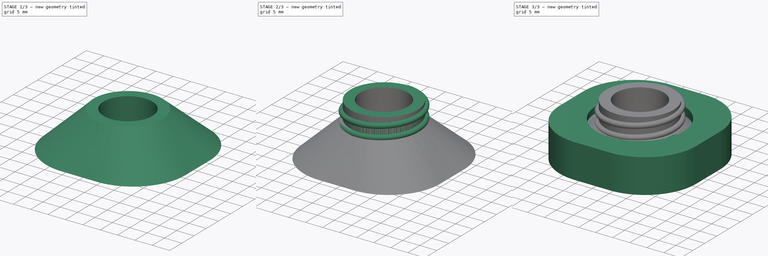
[diagram: build sequence overview — one tinted view per stage of 3, left to right]
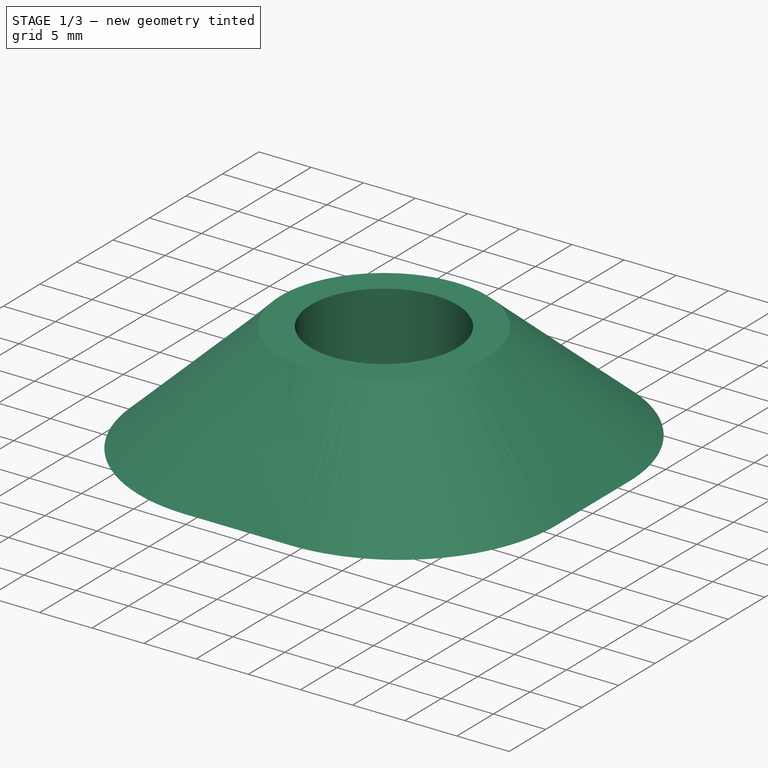
[diagram: stage 1 of 3 — iso view after this stage's code; geometry added in this stage tinted green]
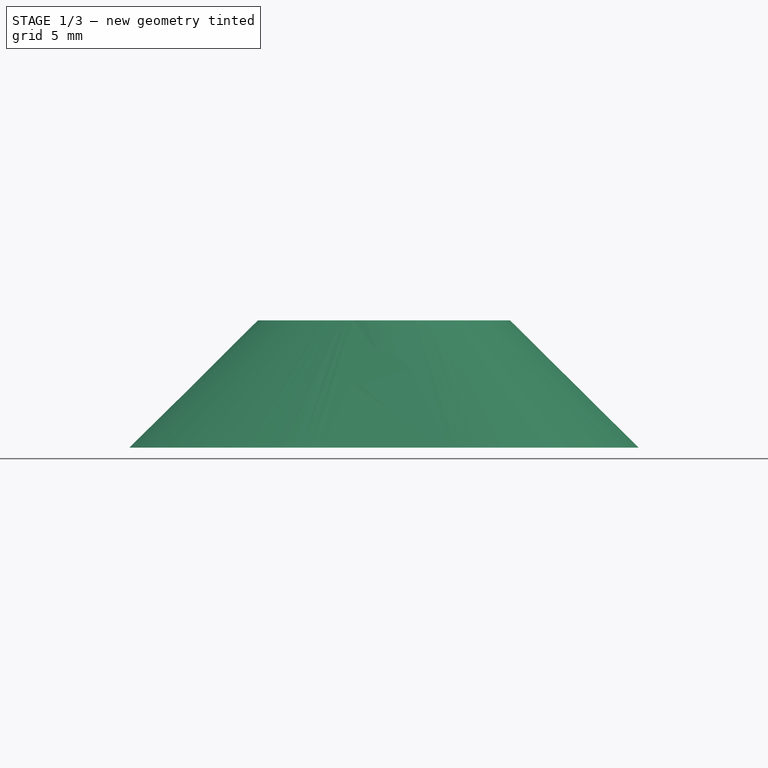
[diagram: stage 1 of 3 — front view after this stage's code; geometry added in this stage tinted green]
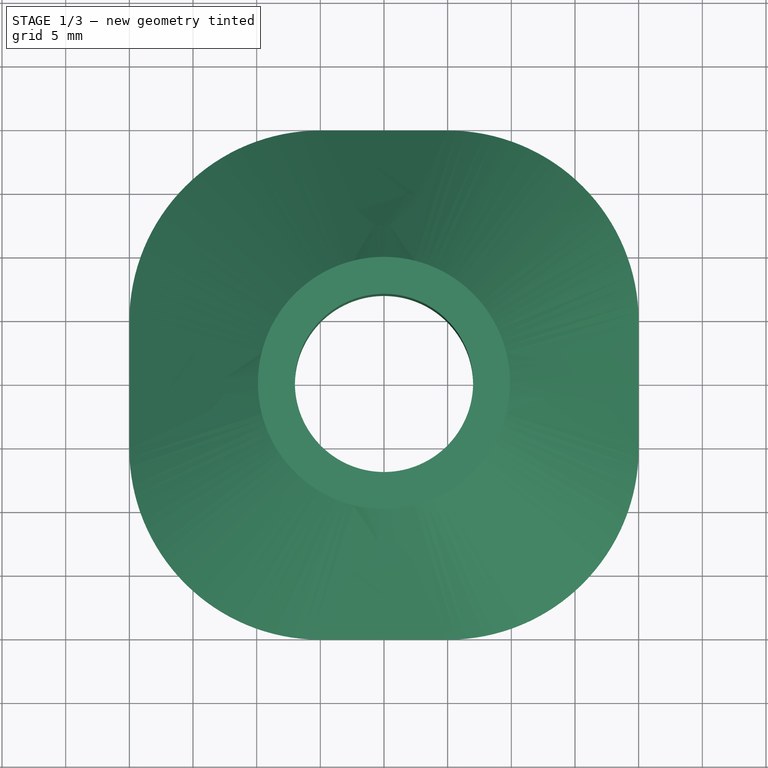
[diagram: stage 1 of 3 — top view after this stage's code; geometry added in this stage tinted green]
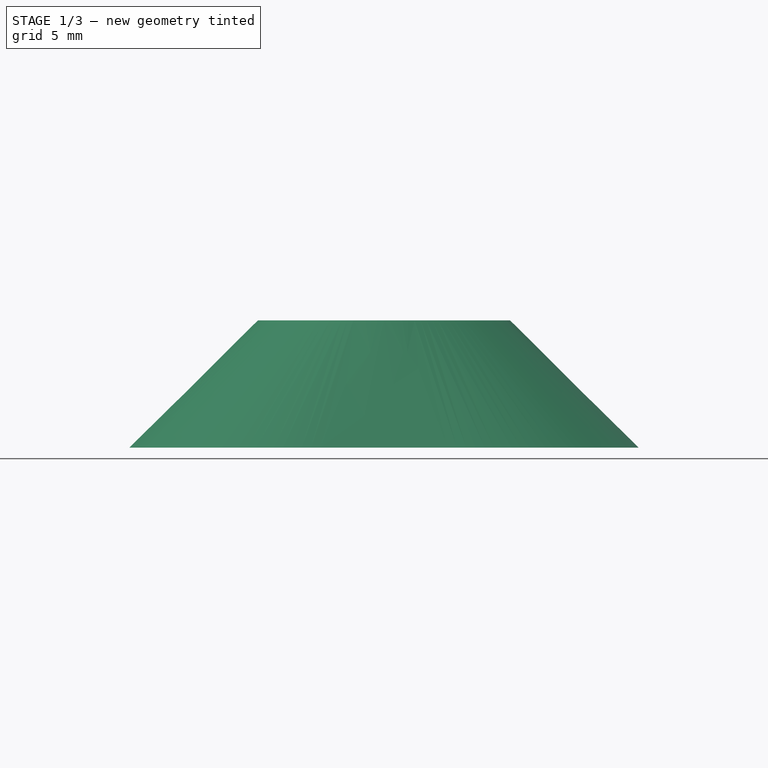
[diagram: stage 1 of 3 — right view after this stage's code; geometry added in this stage tinted green]
FCSTD DOCUMENT  (FreeCAD 0.20R29177 (Git))
Label: dispenser-bottle-adapter
License: All rights reserved
LicenseURL: http://en.wikipedia.org/wiki/All_rights_reserved
objects: Sketcher::SketchObject×7, PartDesign::Body×5, Spreadsheet::Sheet×3, PartDesign::AdditiveHelix×2, PartDesign::Pad×2, PartDesign::AdditiveLoft×1, PartDesign::Plane×1, PartDesign::Pocket×1, App::Part×1
note: 25 computed .brp shape members not serialized (recipe doc carries the construction recipe); baked Part::Feature solids carry a one-line shape summary decoded from their .brp

FEATURE [PartDesign::Body] Body002  label="dispenser-thread"
  Group = -> [Sketch002,AdditiveHelix001]
  Origin = -> Origin005
  Placement = pos=(0,0,20) rot=(0,0,1;0rad)
  Tip = -> AdditiveHelix001
  expr: .Placement.Base.z = <<dispenser-thread-wall>>.Placement.Base.z
FEATURE [Sketcher::SketchObject] Sketch004
  FullyConstrained = true
  MapMode = 5
  Support = -> [XY_Plane007]
  expr: Constraints[16] = <<bottle-cap-dims>>.cap_side_wall_len / 4
  expr: Constraints[17] = <<bottle-cap-dims>>.cap_side_wall_len / 2
  sketch-geometry (8):
    g0: LineSegment StartX=20 StartY=-5 StartZ=0 EndX=20 EndY=5 EndZ=0
    g1: LineSegment StartX=5 StartY=20 StartZ=0 EndX=-5 EndY=20 EndZ=0
    g2: LineSegment StartX=-20 StartY=5 StartZ=0 EndX=-20 EndY=-5 EndZ=0
    g3: LineSegment StartX=-5 StartY=-20 StartZ=0 EndX=5 EndY=-20 EndZ=0
    g4: ArcOfCircle CenterX=5 CenterY=5 CenterZ=0 NormalX=0 NormalY=0 NormalZ=1 AngleXU=0 Radius=15 StartAngle=0 EndAngle=1.5708
    g5: ArcOfCircle CenterX=-5 CenterY=-5 CenterZ=0 NormalX=0 NormalY=0 NormalZ=1 AngleXU=0 Radius=15 StartAngle=3.14159 EndAngle=4.71239
    g6: ArcOfCircle CenterX=5 CenterY=-5 CenterZ=0 NormalX=0 NormalY=0 NormalZ=1 AngleXU=0 Radius=15 StartAngle=4.71239 EndAngle=6.28319
    g7: ArcOfCircle CenterX=-5 CenterY=5 CenterZ=0 NormalX=0 NormalY=0 NormalZ=1 AngleXU=0 Radius=15 StartAngle=1.5708 EndAngle=3.14159
  constraints (18):
    c: Equal(g0,g1)
    c: Equal(g0,g2)
    c: Equal(g0,g3)
    c: Parallel(g2,g-2)
    c: Tangent(g1,g4) = -1.5708
    c: Tangent(g0,g4) = -1.5708
    c: Tangent(g3,g5) = -1.5708
    c: Tangent(g2,g5) = -1.5708
    c: Tangent(g3,g6) = -1.5708
    c: Tangent(g0,g6) = -1.5708
    c: Tangent(g1,g7) = -1.5708
    c: Tangent(g2,g7) = -1.5708
    c: Parallel(g1,g-1)
    c: Parallel(g3,g1)
    c: Symmetric(g7,g4,g-2)
    c: Symmetric(g5,g7,g-1)
    c: DistanceX(g1,g1) = 10
    c: DistanceY(g-1,g1) = 20
FEATURE [Sketcher::SketchObject] Sketch005
  AttachmentOffset = pos=(0,0,10) rot=(0,0,1;0rad)
  FullyConstrained = true
  MapMode = 5
  Placement = pos=(0,0,10) rot=(0,0,1;0rad)
  Support = -> [XY_Plane007]
  expr: .AttachmentOffset.Base.z = <<bridge-dims>>.height
  expr: Constraints[0] = <<dispenser-dims>>.neck_outer
  sketch-geometry (1):
    g0: Circle CenterX=0 CenterY=0 CenterZ=0 NormalX=0 NormalY=0 NormalZ=1 AngleXU=0 Radius=9.9
  constraints (2):
    c: Radius(g0) = 9.9
    c: Coincident(g0,g-1)
FEATURE [PartDesign::AdditiveLoft] AdditiveLoft
  Closed = false
  Profile = -> Sketch005
  Ruled = false
  Sections = -> [Sketch004]
FEATURE [PartDesign::Body] Body003  label="dispenser-thread-wall"
  Group = -> [Sketch003,Pad001]
  Origin = -> Origin
  Placement = pos=(0,0,20) rot=(0,0,1;0rad)
  Tip = -> Pad001
  expr: .Placement.Base.z = <<bottle-cap-dims>>.cap_height + <<bridge-dims>>.height
FEATURE [PartDesign::Pocket] Pocket001
  BaseFeature = -> AdditiveLoft
  Direction = (1,1,1)
  Length = 5
  Length2 = 100
  Profile = -> Sketch006
  Type = 1
FEATURE [PartDesign::Body] Body004  label="bridge"
  Group = -> [Sketch004,Sketch005,AdditiveLoft,DatumPlane,Sketch006,Pocket001]
  Origin = -> Origin007
  Placement = pos=(0,0,10) rot=(0,0,1;0rad)
  Tip = -> Pocket001
FEATURE [App::Part] Part  label="assembly"
  Group = -> [Body,Spreadsheet,Sketch001,Pad,Spreadsheet002,Body004,Body003,Body002,PadBody]
  Origin = -> Origin002
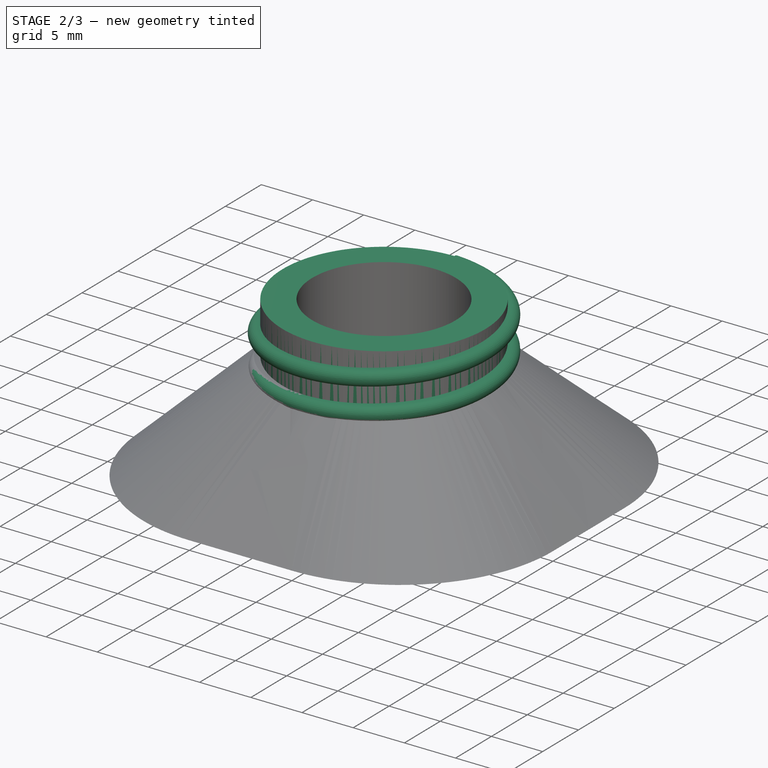
[diagram: stage 2 of 3 — iso view after this stage's code; geometry added in this stage tinted green]
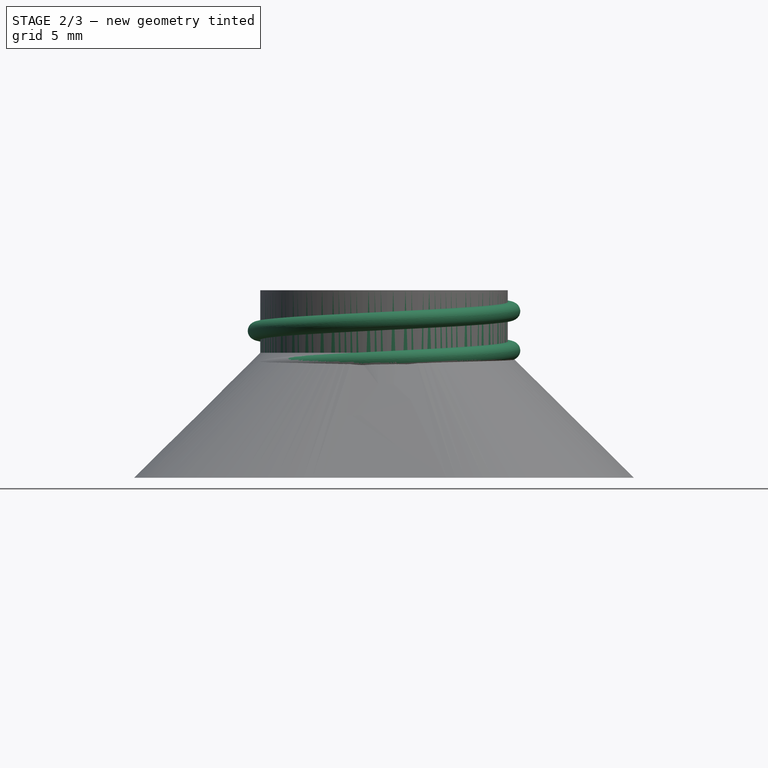
[diagram: stage 2 of 3 — front view after this stage's code; geometry added in this stage tinted green]
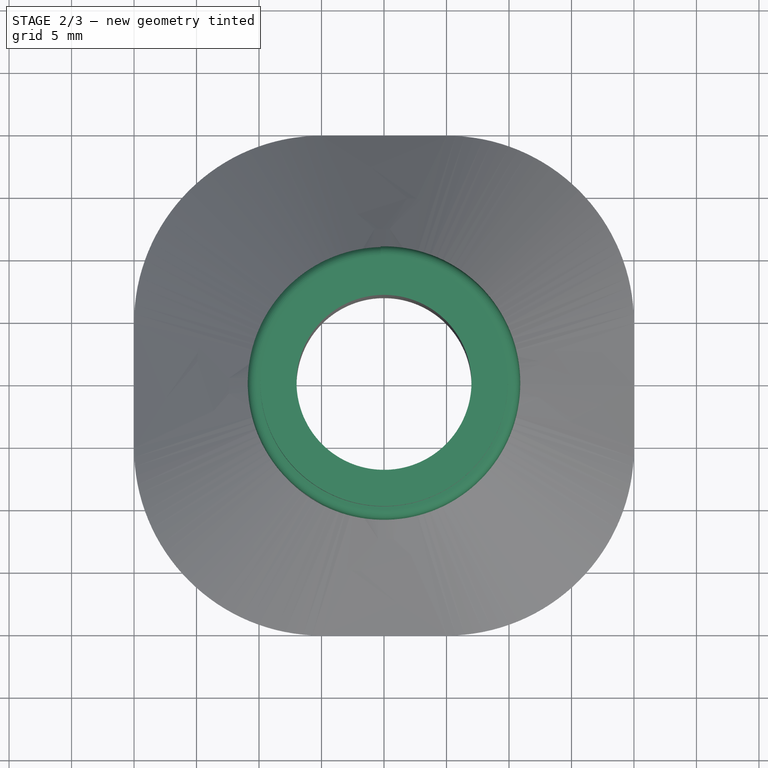
[diagram: stage 2 of 3 — top view after this stage's code; geometry added in this stage tinted green]
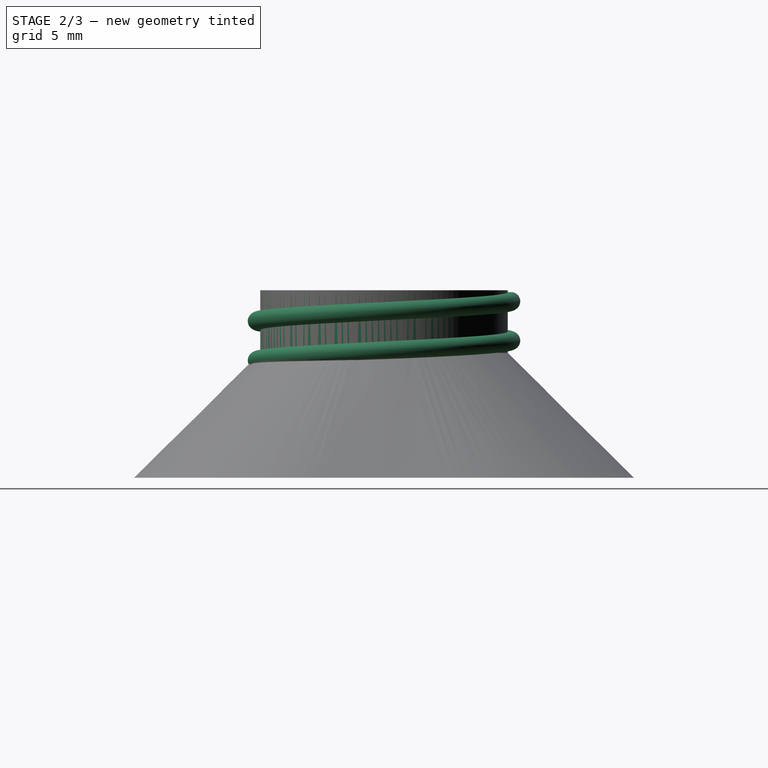
[diagram: stage 2 of 3 — right view after this stage's code; geometry added in this stage tinted green]
FEATURE [Spreadsheet::Sheet] Spreadsheet001  label="dispenser-dims"
  cells = A2=neck_outer; B2(neck_outer)==19.8mm / 2; A3=neck_inner; B3(neck_inner)==7mm; A4=neck_height; B4(neck_height)==15mm; A7=thread_height; B7(thread_height)==1.1mm; A8=thread_thickness; B8(thread_thickness)==1.6mm; A9=thread_seperation; B9(thread_seperation)==3.15mm; A10=thread_radius; B10(thread_radius)==thread_thickness / 2.2
FEATURE [Sketcher::SketchObject] Sketch002  label="thread-lip"
  FullyConstrained = true
  MapMode = 5
  Placement = pos=(0,0,0) rot=(1,0,0;1.5708rad)
  expr: Constraints[11] = <<dispenser-dims>>.thread_thickness * 0.91
  expr: Constraints[13] = <<dispenser-dims>>.thread_radius
  expr: Constraints[14] = <<dispenser-dims>>.thread_height * 0.91
  expr: Constraints[15] = 0mm
  expr: Constraints[5] = <<dispenser-dims>>.neck_outer
  sketch-geometry (6):
    g0: LineSegment StartX=9.9 StartY=1.456 StartZ=0 EndX=10.1737 EndY=1.456 EndZ=0
    g1: LineSegment StartX=10.901 StartY=0.728727 StartZ=0 EndX=10.901 EndY=0.727273 EndZ=0
    g2: LineSegment StartX=10.1737 StartY=1e-16 StartZ=0 EndX=9.9 EndY=1e-16 EndZ=0
    g3: LineSegment StartX=9.9 StartY=1e-16 StartZ=0 EndX=9.9 EndY=1.456 EndZ=0
    g4: ArcOfCircle CenterX=10.1737 CenterY=0.727273 CenterZ=0 NormalX=0 NormalY=0 NormalZ=1 AngleXU=0 Radius=0.727273 StartAngle=4.71239 EndAngle=6.28319
    g5: ArcOfCircle CenterX=10.1737 CenterY=0.728727 CenterZ=0 NormalX=0 NormalY=0 NormalZ=1 AngleXU=0 Radius=0.727273 StartAngle=0 EndAngle=1.5708
  constraints (16):
    c: Coincident(g2,g3)
    c: Coincident(g3,g0)
    c: Horizontal(g0)
    c: Horizontal(g2)
    c: Vertical(g1)
    c: DistanceX(g-1,g2) = 9.9
    c: Tangent(g1,g4) = 1.5708
    c: Tangent(g2,g4) = 1.5708
    c: Tangent(g0,g5) = 1.5708
    c: Tangent(g1,g5) = 1.5708
    c: Parallel(g3,g1)
    c: DistanceY(g2,g0) = 1.456
    c: Vertical(g5,g4)
    c: Radius(g5) = 0.727273
    c: Distance(g1,g3) = 1.001
    c: DistanceY(g-1,g2) = 0
FEATURE [Spreadsheet::Sheet] Spreadsheet002  label="bridge-dims"
  cells = A2=height; B2(height)==10mm; A3=thickness; B3==4mm
FEATURE [Sketcher::SketchObject] Sketch003
  FullyConstrained = true
  MapMode = 5
  Support = -> [XY_Plane]
  expr: Constraints[1] = <<dispenser-dims>>.neck_outer
  expr: Constraints[3] = <<dispenser-dims>>.neck_inner
  sketch-geometry (2):
    g0: Circle CenterX=0 CenterY=0 CenterZ=0 NormalX=0 NormalY=0 NormalZ=1 AngleXU=0 Radius=9.9
    g1: Circle CenterX=0 CenterY=0 CenterZ=0 NormalX=0 NormalY=0 NormalZ=1 AngleXU=0 Radius=7
  constraints (4):
    c: Coincident(g0,g-1)
    c: Radius(g0) = 9.9
    c: Coincident(g1,g0)
    c: Radius(g1) = 7
FEATURE [PartDesign::AdditiveHelix] AdditiveHelix001
  Angle = 0
  Axis = (0,2e-16,1)
  Base = (0,0,0)
  Growth = 0
  HasBeenEdited = true
  Height = 13.4
  LeftHanded = false
  Mode = 0
  Outside = false
  Pitch = 3.15
  Placement = pos=(0,0,0) rot=(1,0,0;1.5708rad)
  Profile = -> Sketch002
  ReferenceAxis = -> Sketch002 [V_Axis]
  Turns = 4.25397
  expr: Height = <<dispenser-dims>>.neck_height - <<dispenser-dims>>.thread_thickness
  expr: Pitch = <<dispenser-dims>>.thread_seperation
FEATURE [PartDesign::Plane] DatumPlane
  Length = 60
  MapMode = 5
  Placement = pos=(0,0,10) rot=(0,0,1;0rad)
  ResizeMode = 0
  Support = -> [AdditiveLoft]
  Width = 60
FEATURE [Sketcher::SketchObject] Sketch006
  FullyConstrained = true
  MapMode = 5
  Placement = pos=(0,0,10) rot=(0,0,1;0rad)
  Support = -> [DatumPlane]
  expr: Constraints[1] = <<dispenser-dims>>.neck_inner
  sketch-geometry (1):
    g0: Circle CenterX=0 CenterY=0 CenterZ=0 NormalX=0 NormalY=0 NormalZ=1 AngleXU=0 Radius=7
  constraints (2):
    c: Coincident(g0,g-1)
    c: Radius(g0) = 7
FEATURE [PartDesign::Body] PadBody
  Origin = -> Origin008
FEATURE [PartDesign::Pad] Pad001
  Direction = (1,1,1)
  Length = 15
  Length2 = 100
  Profile = -> Sketch003
  Type = 0
  expr: Length = <<dispenser-dims>>.neck_height
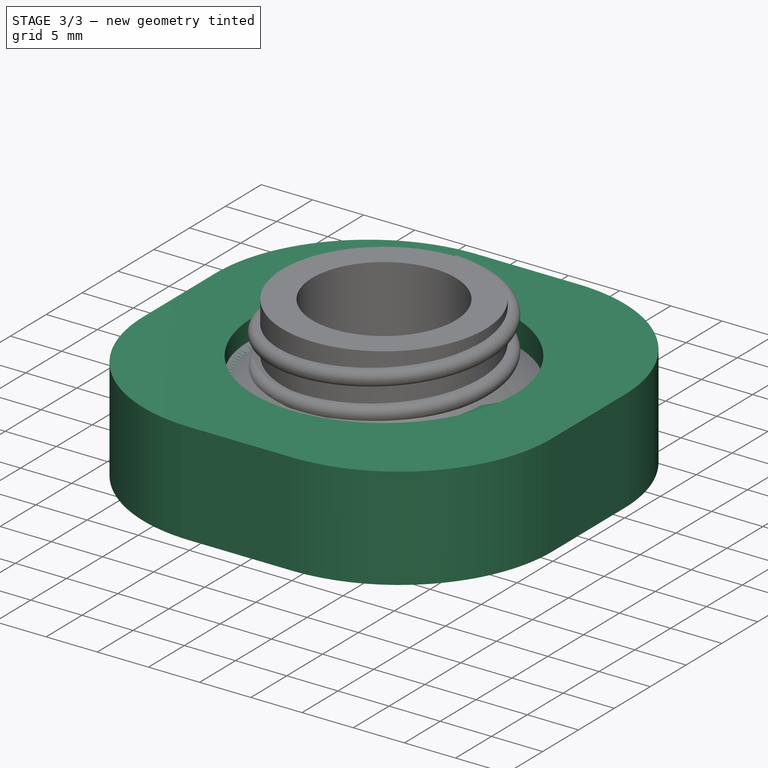
[diagram: stage 3 of 3 — iso view after this stage's code; geometry added in this stage tinted green]
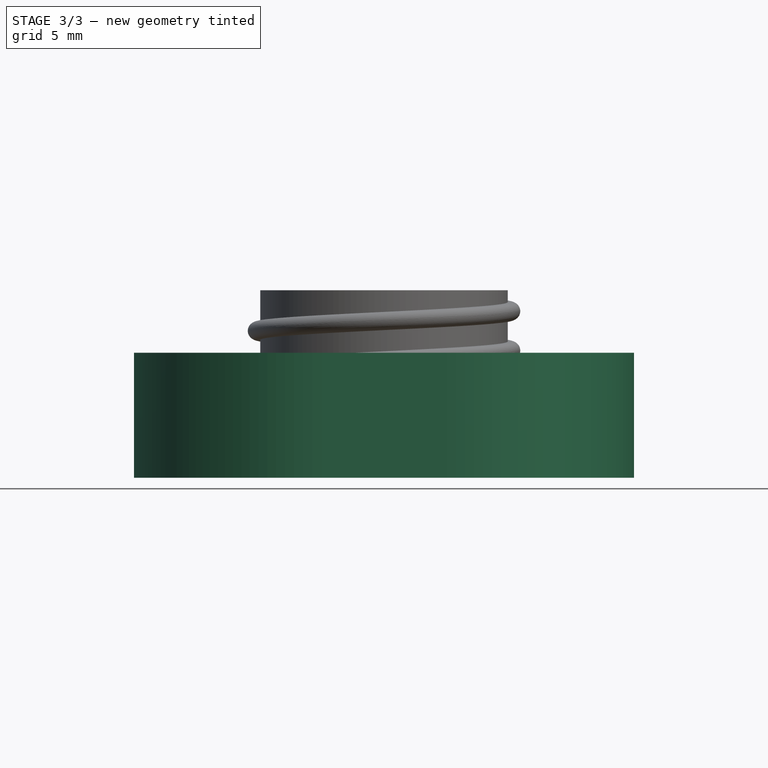
[diagram: stage 3 of 3 — front view after this stage's code; geometry added in this stage tinted green]
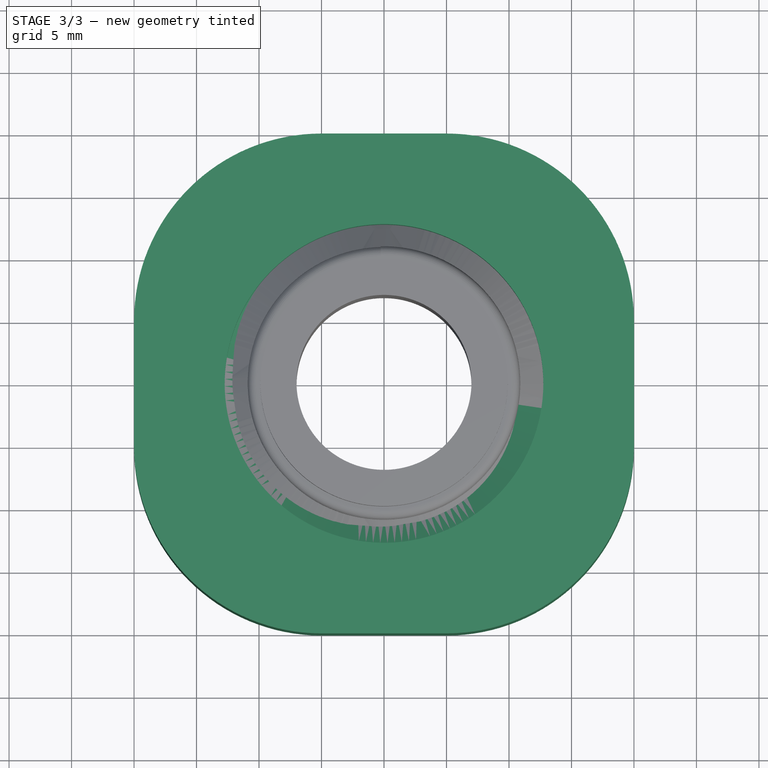
[diagram: stage 3 of 3 — top view after this stage's code; geometry added in this stage tinted green]
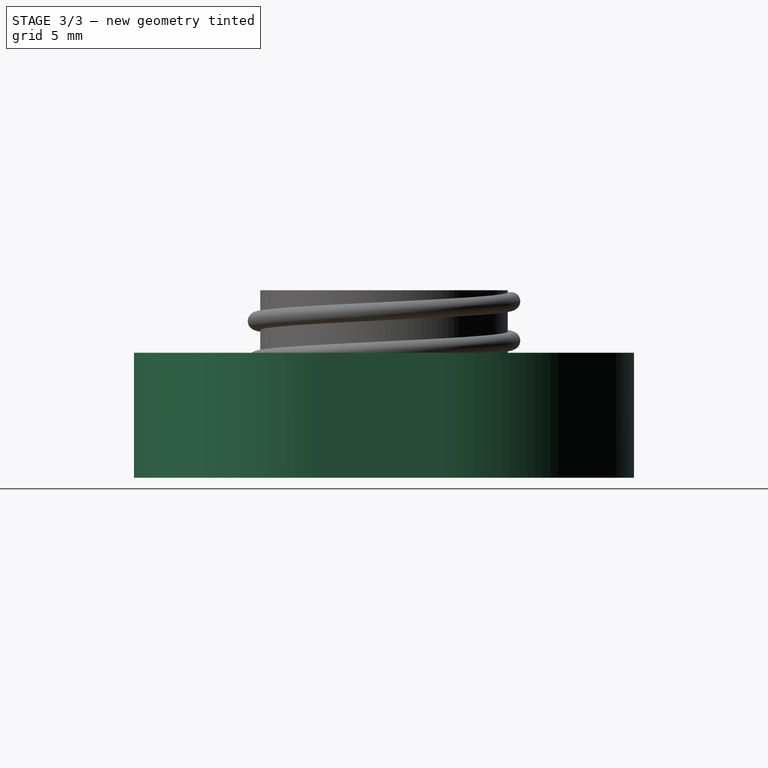
[diagram: stage 3 of 3 — right view after this stage's code; geometry added in this stage tinted green]
FEATURE [Sketcher::SketchObject] Sketch
  FullyConstrained = true
  MapMode = 5
  Placement = pos=(0,0,0) rot=(1,0,0;1.5708rad)
  Support = -> [XZ_Plane002]
  expr: Constraints[10] = <<bottle-cap-dims>>.cap_thread_width * 0.1
  expr: Constraints[6] = <<bottle-cap-dims>>.cap_hole_inner_radius
  expr: Constraints[7] = <<bottle-cap-dims>>.cap_thread_width
  expr: Constraints[9] = <<bottle-cap-dims>>.cap_thread_width
  sketch-geometry (4):
    g0: LineSegment StartX=12.75 StartY=0 StartZ=0 EndX=12.75 EndY=2 EndZ=0
    g1: LineSegment StartX=12.75 StartY=2 StartZ=0 EndX=10.75 EndY=1.1 EndZ=0
    g2: LineSegment StartX=10.75 StartY=1.1 StartZ=0 EndX=10.75 EndY=0.9 EndZ=0
    g3: LineSegment StartX=10.75 StartY=0.9 StartZ=0 EndX=12.75 EndY=0 EndZ=0
  constraints (12):
    c: PointOnObject(g0,g-1)
    c: Vertical(g0)
    c: Coincident(g0,g1)
    c: Vertical(g2)
    c: Coincident(g2,g3)
    c: Coincident(g3,g0)
    c: DistanceX(g-2,g0) = 12.75
    c: DistanceY(g0,g0) = 2
    c: Coincident(g2,g1)
    c: Distance(g2,g0) = 2
    c: DistanceY(g2,g2) = 0.2
    c: Equal(g3,g1)
FEATURE [Spreadsheet::Sheet] Spreadsheet  label="bottle-cap-dims"
  cells = A4=cap_max_fillet_radius; B4(cap_max_fillet_radius)=; A5=cap_hole_radius; B5(cap_hole_inner_radius)==12.75mm; A6=cap_height; B6(cap_height)==10mm; A7=cap_thread_height; B7(cap_thread_height)==0.7mm; A8=cap_thread_seperation; B8(cap_thread_seperation)==4.05mm; A9=cap_thread_width; B9(cap_thread_width)==2mm; A10=cap_side_wall_len; B10(cap_side_wall_len)==40mm
FEATURE [PartDesign::AdditiveHelix] AdditiveHelix
  Angle = 0
  Axis = (0,-2e-16,1)
  Base = (0,0,0)
  Growth = 0
  HasBeenEdited = true
  Height = 8
  LeftHanded = false
  Mode = 0
  Outside = false
  Pitch = 4.05
  Placement = pos=(0,0,0) rot=(1,0,0;1.5708rad)
  Profile = -> Sketch
  ReferenceAxis = -> Sketch [V_Axis]
  Turns = 1.97531
  expr: Height = <<bottle-cap-dims>>.cap_height - <<bottle-cap-dims>>.cap_thread_width
  expr: Pitch = <<bottle-cap-dims>>.cap_thread_seperation
FEATURE [PartDesign::Body] Body  label="bottle-cap-thread"
  Group = -> [Sketch,AdditiveHelix]
  Origin = -> Origin002
  Tip = -> AdditiveHelix
FEATURE [Sketcher::SketchObject] Sketch001
  FullyConstrained = true
  MapMode = 5
  expr: Constraints[18] = <<bottle-cap-dims>>.cap_side_wall_len / 2
  expr: Constraints[19] = <<bottle-cap-dims>>.cap_side_wall_len / 4
  expr: Constraints[1] = <<bottle-cap-dims>>.cap_hole_inner_radius
  sketch-geometry (9):
    g0: Circle CenterX=0 CenterY=0 CenterZ=0 NormalX=0 NormalY=0 NormalZ=1 AngleXU=0 Radius=12.75
    g1: LineSegment StartX=5 StartY=20 StartZ=0 EndX=-5 EndY=20 EndZ=0
    g2: LineSegment StartX=-20 StartY=5 StartZ=0 EndX=-20 EndY=-5 EndZ=0
    g3: LineSegment StartX=-5 StartY=-20 StartZ=0 EndX=5 EndY=-20 EndZ=0
    g4: LineSegment StartX=20 StartY=-5 StartZ=0 EndX=20 EndY=5 EndZ=0
    g5: ArcOfCircle CenterX=-5 CenterY=5 CenterZ=0 NormalX=0 NormalY=0 NormalZ=1 AngleXU=0 Radius=15 StartAngle=1.5708 EndAngle=3.14159
    g6: ArcOfCircle CenterX=5 CenterY=-5 CenterZ=0 NormalX=0 NormalY=0 NormalZ=1 AngleXU=0 Radius=15 StartAngle=4.71239 EndAngle=6.28319
    g7: ArcOfCircle CenterX=5 CenterY=5 CenterZ=0 NormalX=0 NormalY=0 NormalZ=1 AngleXU=0 Radius=15 StartAngle=0 EndAngle=1.5708
    g8: ArcOfCircle CenterX=-5 CenterY=-5 CenterZ=0 NormalX=0 NormalY=0 NormalZ=1 AngleXU=0 Radius=15 StartAngle=3.14159 EndAngle=4.71239
  constraints (20):
    c: Coincident(g0,g-1)
    c: Radius(g0) = 12.75
    c: Equal(g1,g2)
    c: Equal(g1,g3)
    c: Equal(g1,g4)
    c: Tangent(g1,g5) = -1.5708
    c: Tangent(g2,g5) = -1.5708
    c: Tangent(g3,g6) = -1.5708
    c: Tangent(g4,g6) = -1.5708
    c: Tangent(g1,g7) = -1.5708
    c: Tangent(g4,g7) = -1.5708
    c: Tangent(g2,g8) = -1.5708
    c: Tangent(g3,g8) = -1.5708
    c: Parallel(g1,g-1)
    c: Parallel(g1,g3)
    c: Parallel(g4,g-2)
    c: Symmetric(g1,g3,g-1)
    c: Symmetric(g2,g4,g-2)
    c: DistanceY(g-1,g1) = 20
    c: Distance(g1) = 10
FEATURE [PartDesign::Pad] Pad  label="bottle-cap-wall"
  Direction = (1,1,1)
  Length = 10
  Length2 = 100
  Profile = -> Sketch001
  Type = 0
  expr: Length = <<bottle-cap-dims>>.cap_height
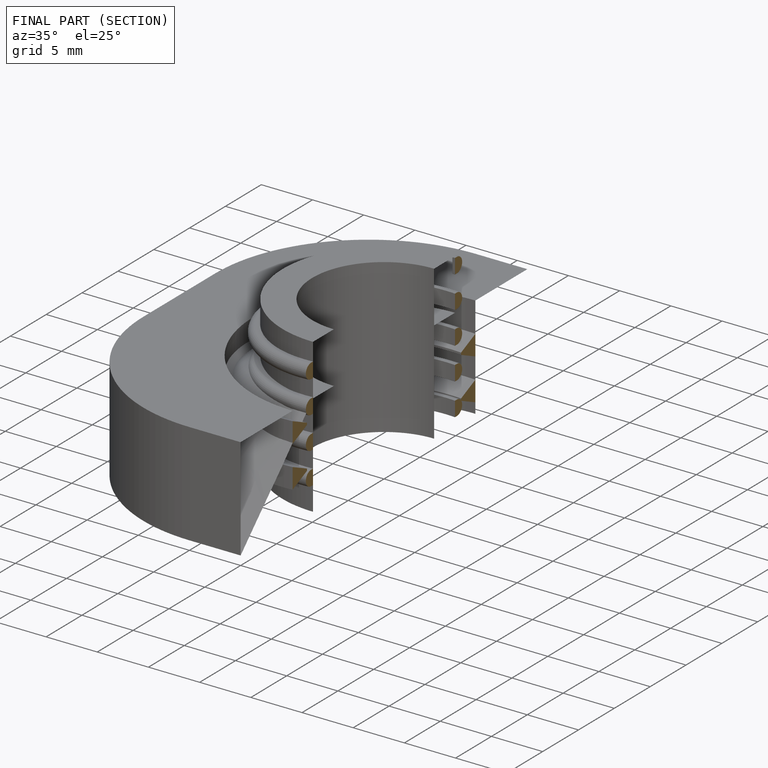
[diagram: finished part — half-section view (interior)]
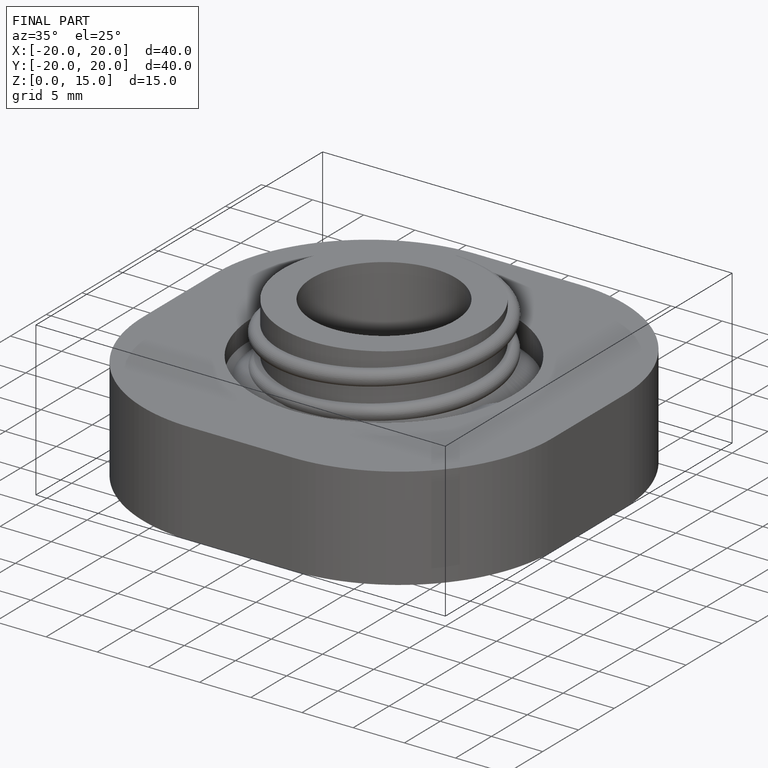
[diagram: finished part — iso view with bounding-box wireframe]
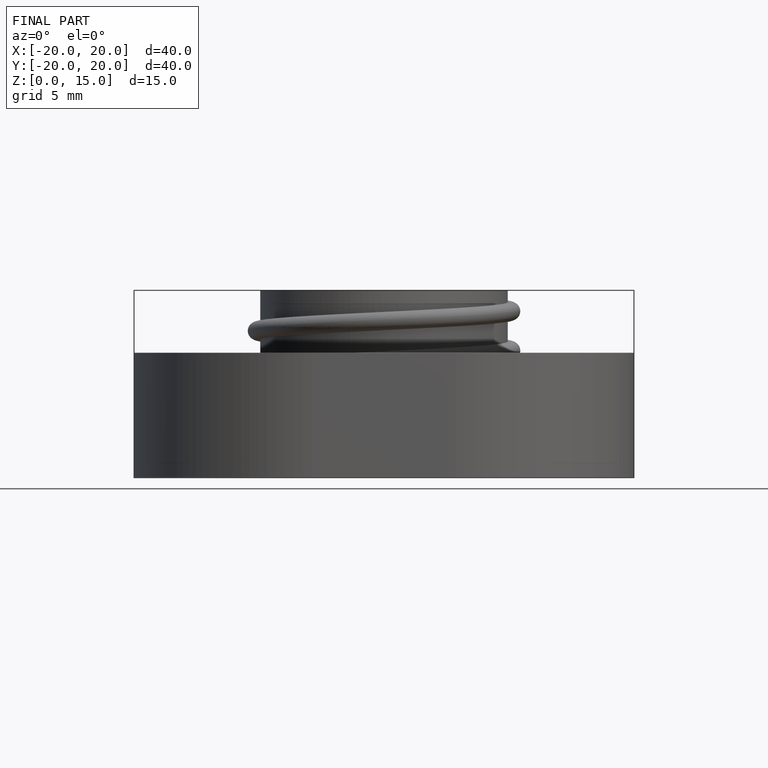
[diagram: finished part — front view with bounding-box wireframe]
